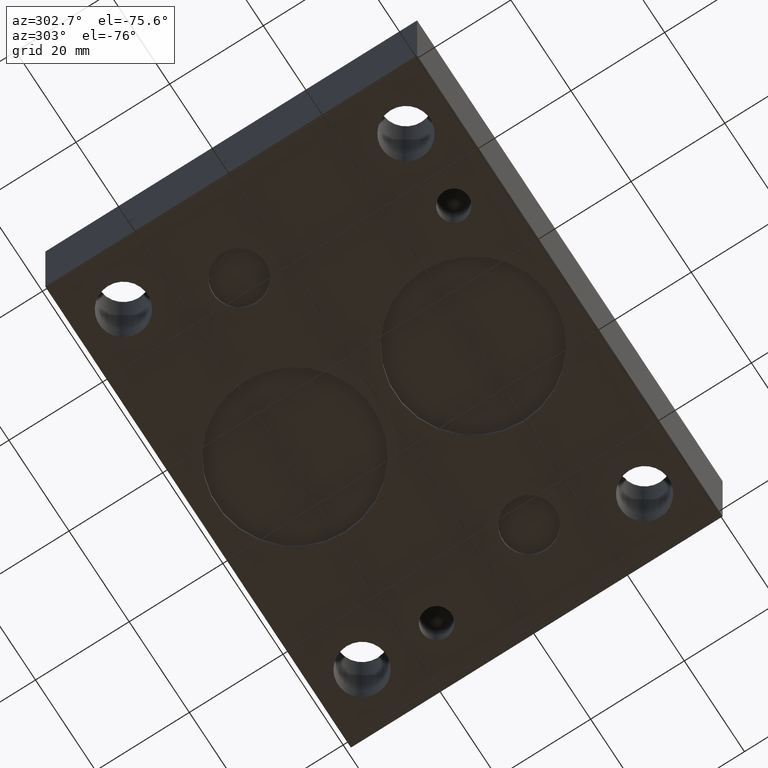
[diagram: clean part render]
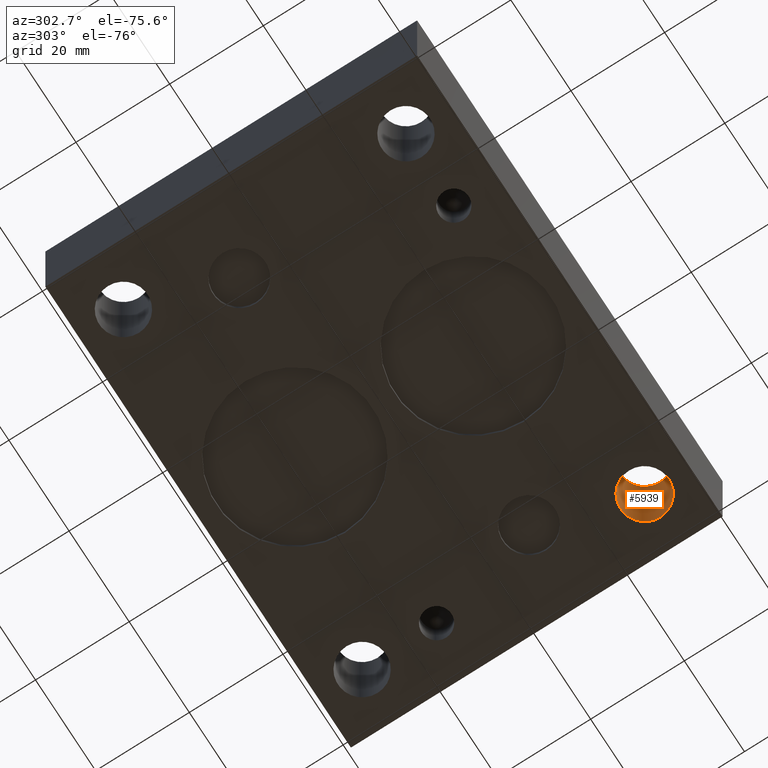
[diagram: same view with one face highlighted and labeled with its STEP entity id]
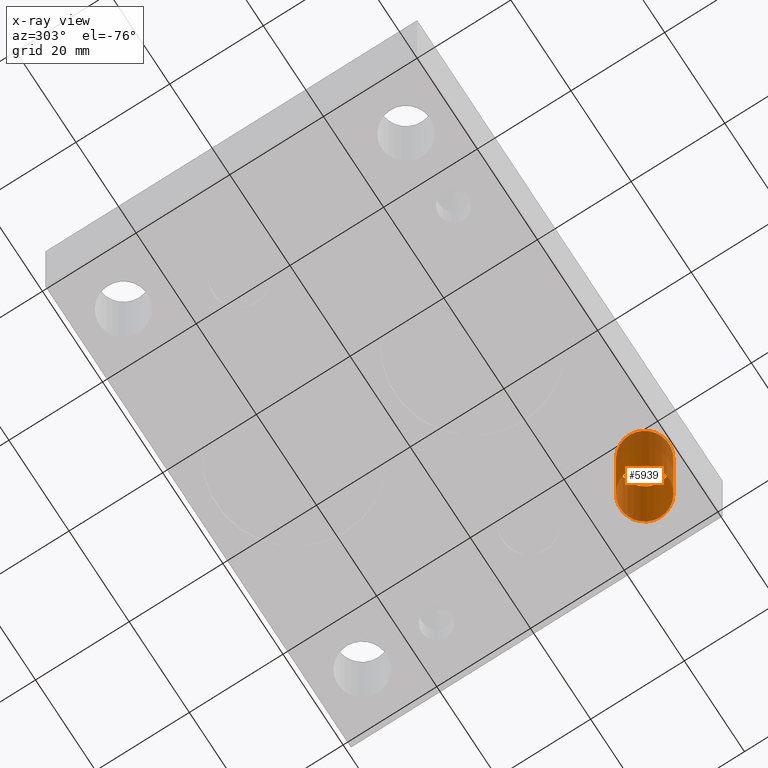
[diagram: x-ray of the same camera — body ghosted, the highlighted face saturated]
A machine part, auxiliary view. The second image highlights one B-rep face of the part: STEP entity #5939.
The next image is the same camera in x-ray: the body ghosted, the highlighted face saturated — about 24% of this face is hidden behind the body in this view.
In plain terms, the highlighted cylindrical surface (bore or boss wall) has radius 5.1562 mm, axis along (0, 0, -1).
Its self-contained STEP definition (entity closure, byte-faithful):
#40=CIRCLE('',#6196,5.1562);
#41=CIRCLE('',#6197,5.1562);
#42=CIRCLE('',#6198,5.1562);
#58=CYLINDRICAL_SURFACE('',#6195,5.1562);
#594=FACE_OUTER_BOUND('',#916,.T.);
#916=EDGE_LOOP('',(#5239,#5240,#5241,#5242,#5243));
#1544=LINE('',#9980,#2160);
#2160=VECTOR('',#7293,5.1562);
#2860=VERTEX_POINT('',#9975);
#2861=VERTEX_POINT('',#9976);
#2862=VERTEX_POINT('',#9979);
#3662=EDGE_CURVE('',#2860,#2861,#40,.T.);
#3663=EDGE_CURVE('',#2861,#2860,#41,.T.);
#3664=EDGE_CURVE('',#2861,#2862,#1544,.T.);
#3665=EDGE_CURVE('',#2862,#2862,#42,.T.);
#5239=ORIENTED_EDGE('',*,*,#3662,.F.);
#5240=ORIENTED_EDGE('',*,*,#3663,.F.);
#5241=ORIENTED_EDGE('',*,*,#3664,.T.);
#5242=ORIENTED_EDGE('',*,*,#3665,.F.);
#5243=ORIENTED_EDGE('',*,*,#3664,.F.);
#5939=ADVANCED_FACE('',(#594),#58,.F.);
#6195=AXIS2_PLACEMENT_3D('',#9974,#7287,#7288);
#6196=AXIS2_PLACEMENT_3D('',#9977,#7289,#7290);
#6197=AXIS2_PLACEMENT_3D('',#9978,#7291,#7292);
#6198=AXIS2_PLACEMENT_3D('',#9981,#7294,#7295);
#7287=DIRECTION('center_axis',(0.,0.,-1.));
#7288=DIRECTION('ref_axis',(1.,0.,0.));
#7289=DIRECTION('center_axis',(0.,0.,1.));
#7290=DIRECTION('ref_axis',(1.,0.,0.));
#7291=DIRECTION('center_axis',(0.,0.,1.));
#7292=DIRECTION('ref_axis',(1.,0.,0.));
#7293=DIRECTION('',(0.,0.,1.));
#7294=DIRECTION('center_axis',(0.,0.,-1.));
#7295=DIRECTION('ref_axis',(1.,0.,0.));
#9974=CARTESIAN_POINT('Origin',(90.5002,9.52500000000001,131.40818324975));
#9975=CARTESIAN_POINT('',(95.6564,9.52500000000001,0.));
#9976=CARTESIAN_POINT('',(85.344,9.52500000000001,0.));
#9977=CARTESIAN_POINT('Origin',(90.5002,9.52500000000001,0.));
#9978=CARTESIAN_POINT('Origin',(90.5002,9.52500000000001,0.));
#9979=CARTESIAN_POINT('',(85.344,9.52500000000001,25.4));
#9980=CARTESIAN_POINT('',(85.344,9.52500000000001,131.40818324975));
#9981=CARTESIAN_POINT('Origin',(90.5002,9.52500000000001,25.4));